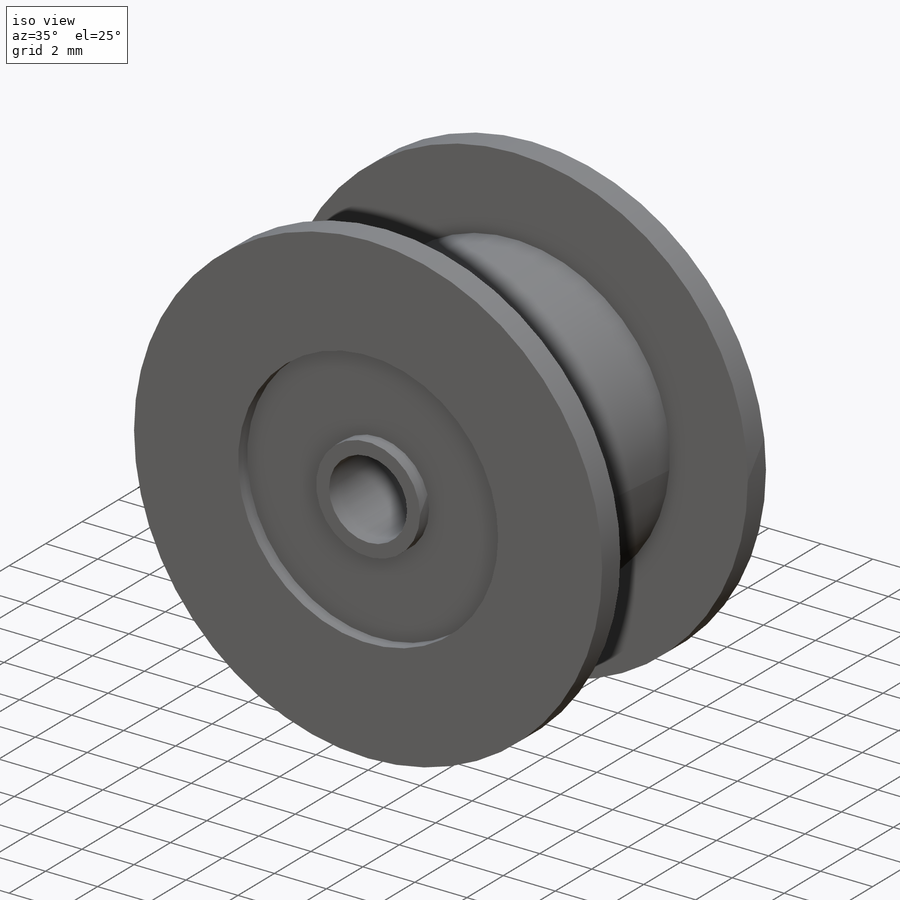
[diagram: iso view]
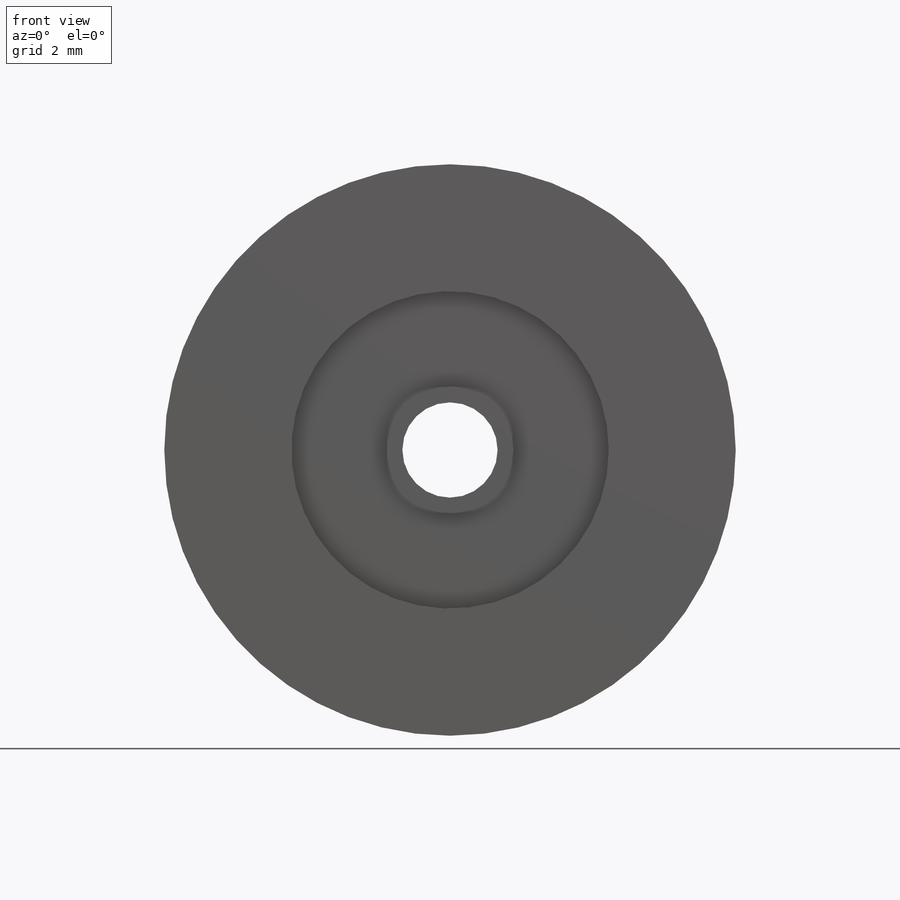
[diagram: front view]
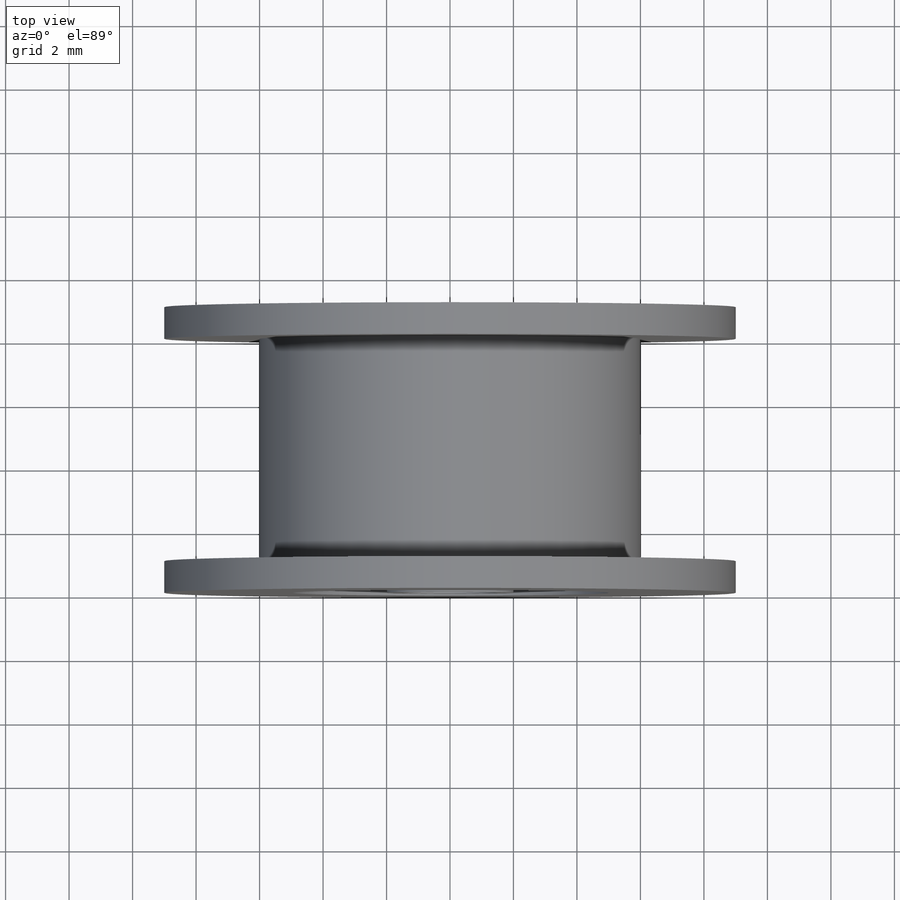
[diagram: top view]
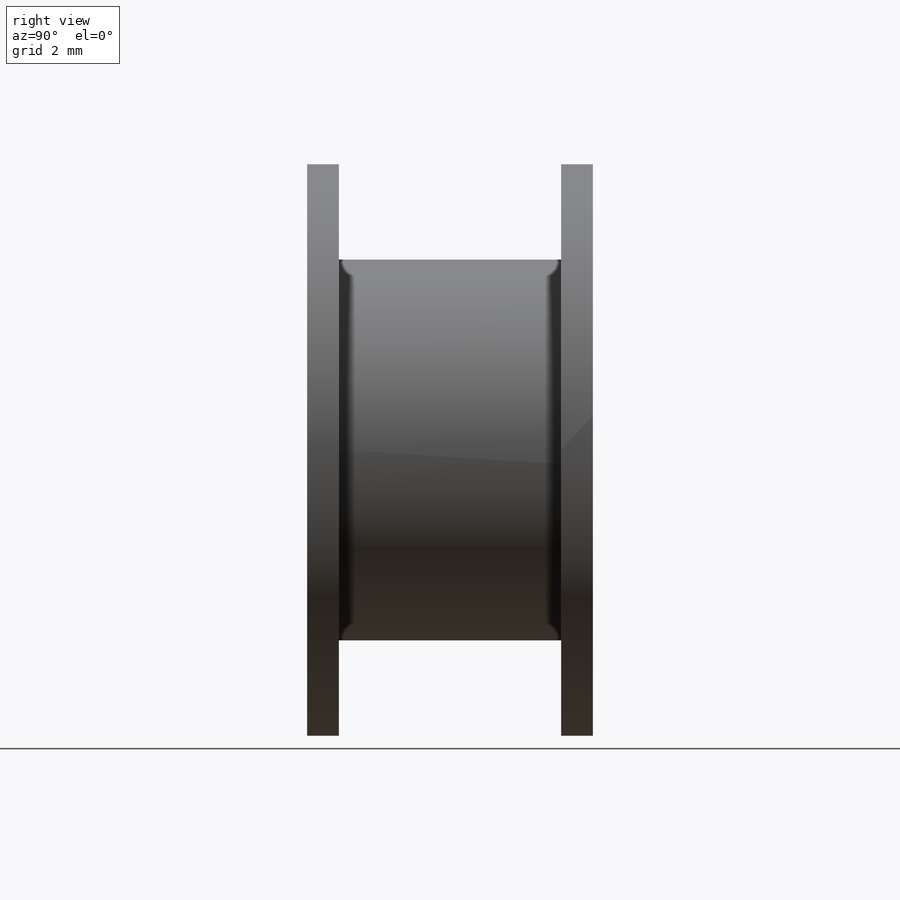
[diagram: right view]
SOLIDWORKS PART (.sldprt)
format: sldprt  version: not decoded by parser v0  size: 225,792 bytes
history: native  units: mm
features: sketch x6, plane x3, extrude x3, cut_extrude x3, material x1 (+10 scaffold rows collapsed)
feature tree (26):
  scaffold x10  (default folders/planes/origin — collapsed)
  material  "材质 <未指定>"
  plane  "前视基准面"
  plane  "上视基准面"
  plane  "右视基准面"
  sketch  "草图1"  dims[D1=~27.601036mm]
  extrude  "凸台-拉伸1"  Depth=7mm
  sketch  "草图2"  dims[D1=~11.107522mm]
  extrude  "凸台-拉伸2"  Depth=1mm
  sketch  "草图3"  dims[D1=~11.037117mm]
  extrude  "凸台-拉伸3"  Depth=1mm
  sketch  "草图4"  dims[D1=~2.487169mm]
  cut_extrude  "切除-拉伸2"  Depth=11mm
  sketch  "草图5"  dims[D1=~5.050992mm]
  cut_extrude  "切除-拉伸3"  Depth=0.5mm
  sketch  "草图6"  dims[D1=~5.595654mm]
  cut_extrude  "切除-拉伸4"  Depth=0.5mm
decode coverage: 12 of 12 modeling features carry decoded parameters
note: ~ marks probable driven/reference dimensions
note: suppression state not decoded; provenance and decode notes live in map.json
